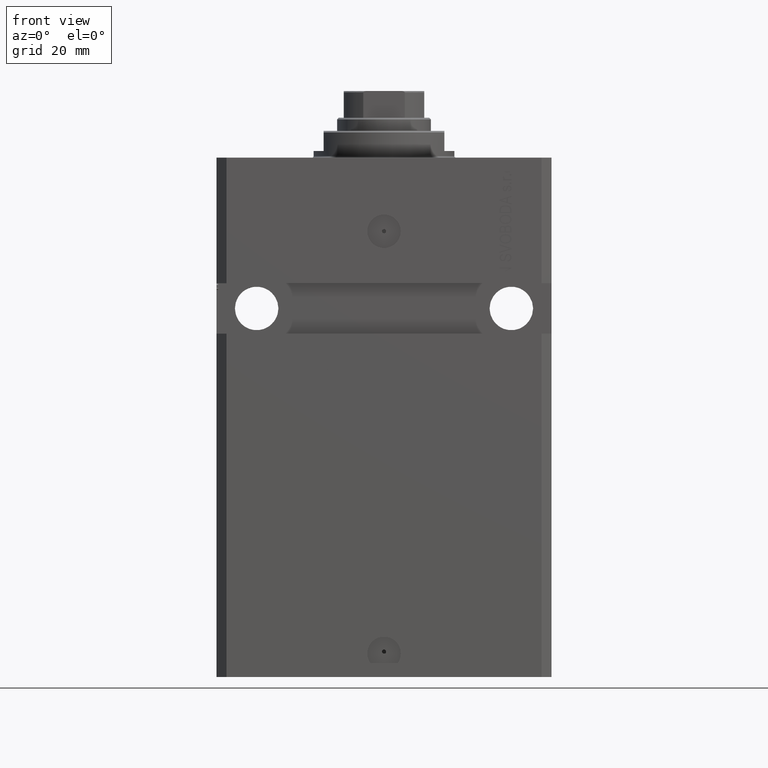
[diagram: clean part render]
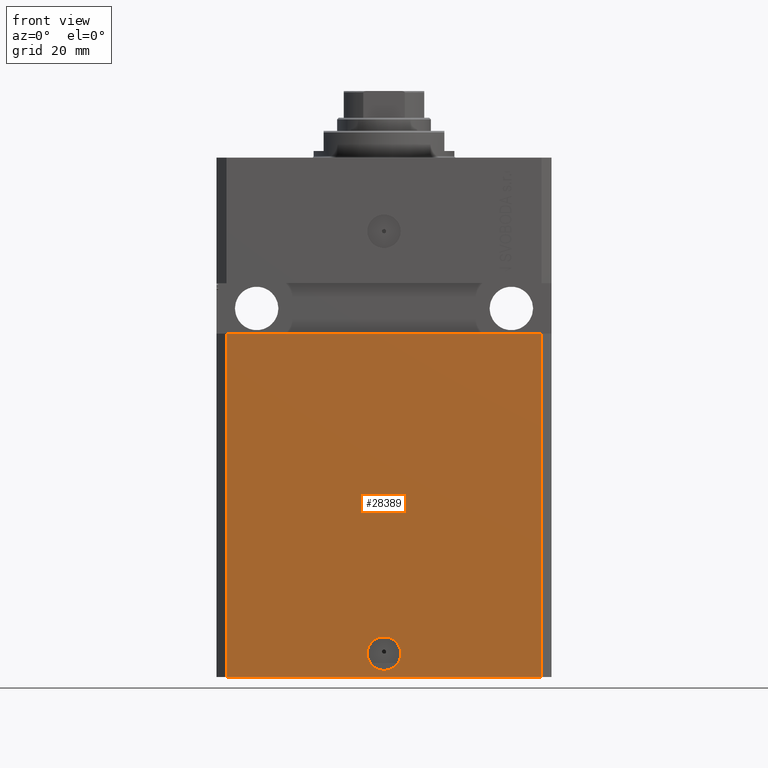
[diagram: same view with one face highlighted and labeled with its STEP entity id]
A machine part, front view. The second image highlights one B-rep face of the part: STEP entity #28389.
In plain terms, the highlighted planar face has unit normal (-0, -1, 0).
Its self-contained STEP definition (entity closure, byte-faithful):
#846 = VERTEX_POINT ( 'NONE', #2410 ) ;
#1142 = ORIENTED_EDGE ( 'NONE', *, *, #39745, .T. ) ;
#2410 = CARTESIAN_POINT ( 'NONE',  ( -46.99999999999998579, -37.50000000000000711, -52.50000000000000000 ) ) ;
#2871 = EDGE_CURVE ( 'NONE', #45865, #14007, #14637, .T. ) ;
#4160 = DIRECTION ( 'NONE',  ( 1.000000000000000000, 0.000000000000000000, 0.000000000000000000 ) ) ;
#4547 = FACE_BOUND ( 'NONE', #8611, .T. ) ;
#8611 = EDGE_LOOP ( 'NONE', ( #40154, #13265 ) ) ;
#10115 = VERTEX_POINT ( 'NONE', #16277 ) ;
#10332 = LINE ( 'NONE', #35856, #13016 ) ;
#10384 = ORIENTED_EDGE ( 'NONE', *, *, #23740, .F. ) ;
#11379 = CARTESIAN_POINT ( 'NONE',  ( -5.536351519074916863E-15, -37.50000000000000000, -148.0000000000000000 ) ) ;
#11466 = CARTESIAN_POINT ( 'NONE',  ( 47.00000000000000000, -37.49999999999999289, -52.49999999999998579 ) ) ;
#12209 = DIRECTION ( 'NONE',  ( 0.000000000000000000, 0.000000000000000000, 1.000000000000000000 ) ) ;
#13016 = VECTOR ( 'NONE', #17316, 1000.000000000000000 ) ;
#13265 = ORIENTED_EDGE ( 'NONE', *, *, #2871, .F. ) ;
#14007 = VERTEX_POINT ( 'NONE', #36288 ) ;
#14637 = CIRCLE ( 'NONE', #46161, 5.000000000000006217 ) ;
#15334 = DIRECTION ( 'NONE',  ( 0.000000000000000000, 0.000000000000000000, 1.000000000000000000 ) ) ;
#15863 = DIRECTION ( 'NONE',  ( 1.000000000000000000, -1.476360405086644309E-16, 0.000000000000000000 ) ) ;
#16123 = EDGE_CURVE ( 'NONE', #37759, #34268, #30024, .T. ) ;
#16277 = CARTESIAN_POINT ( 'NONE',  ( -47.00000000000000000, -37.49999999999999289, -155.0000000000000000 ) ) ;
#16574 = CARTESIAN_POINT ( 'NONE',  ( -47.00000000000000000, -37.49999999999999289, -155.0000000000000000 ) ) ;
#17316 = DIRECTION ( 'NONE',  ( 1.000000000000000000, -1.476360405086644309E-16, 0.000000000000000000 ) ) ;
#18604 = AXIS2_PLACEMENT_3D ( 'NONE', #28925, #46550, #28003 ) ;
#18903 = VECTOR ( 'NONE', #15334, 1000.000000000000000 ) ;
#19245 = DIRECTION ( 'NONE',  ( -1.476360405086644309E-16, -1.000000000000000000, 0.000000000000000000 ) ) ;
#19748 = CARTESIAN_POINT ( 'NONE',  ( -50.00000000000002842, -37.50000000000000711, -52.50000000000000000 ) ) ;
#22469 = CIRCLE ( 'NONE', #18604, 5.000000000000006217 ) ;
#23740 = EDGE_CURVE ( 'NONE', #846, #34268, #33960, .T. ) ;
#23860 = AXIS2_PLACEMENT_3D ( 'NONE', #16574, #19245, #15863 ) ;
#26730 = DIRECTION ( 'NONE',  ( 1.000000000000000000, 1.387778780781445182E-16, 1.387778780781445182E-16 ) ) ;
#26786 = DIRECTION ( 'NONE',  ( 1.176083712526788232E-16, -1.000000000000000000, 0.000000000000000000 ) ) ;
#28003 = DIRECTION ( 'NONE',  ( 1.000000000000000000, 0.000000000000000000, 0.000000000000000000 ) ) ;
#28389 = ADVANCED_FACE ( 'NONE', ( #4547, #41156 ), #37543, .T. ) ;
#28925 = CARTESIAN_POINT ( 'NONE',  ( -5.536351519074916863E-15, -37.50000000000000000, -148.0000000000000000 ) ) ;
#29737 = EDGE_LOOP ( 'NONE', ( #10384, #30244, #1142, #41120 ) ) ;
#30024 = LINE ( 'NONE', #34592, #18903 ) ;
#30244 = ORIENTED_EDGE ( 'NONE', *, *, #38257, .F. ) ;
#30273 = LINE ( 'NONE', #34126, #35564 ) ;
#32328 = CARTESIAN_POINT ( 'NONE',  ( -5.000000000000011546, -37.50000000000000000, -148.0000000000000000 ) ) ;
#33637 = VECTOR ( 'NONE', #26730, 1000.000000000000000 ) ;
#33960 = LINE ( 'NONE', #19748, #33637 ) ;
#34126 = CARTESIAN_POINT ( 'NONE',  ( -47.00000000000000000, -37.49999999999999289, -155.0000000000000000 ) ) ;
#34268 = VERTEX_POINT ( 'NONE', #11466 ) ;
#34592 = CARTESIAN_POINT ( 'NONE',  ( 47.00000000000000000, -37.50000000000000711, -155.0000000000000000 ) ) ;
#35564 = VECTOR ( 'NONE', #12209, 1000.000000000000000 ) ;
#35856 = CARTESIAN_POINT ( 'NONE',  ( -47.00000000000000000, -37.49999999999999289, -155.0000000000000000 ) ) ;
#36288 = CARTESIAN_POINT ( 'NONE',  ( 5.000000000000000888, -37.50000000000000000, -148.0000000000000000 ) ) ;
#37543 = PLANE ( 'NONE',  #23860 ) ;
#37548 = EDGE_CURVE ( 'NONE', #14007, #45865, #22469, .T. ) ;
#37759 = VERTEX_POINT ( 'NONE', #38330 ) ;
#38257 = EDGE_CURVE ( 'NONE', #10115, #846, #30273, .T. ) ;
#38330 = CARTESIAN_POINT ( 'NONE',  ( 47.00000000000000000, -37.50000000000000711, -155.0000000000000000 ) ) ;
#39745 = EDGE_CURVE ( 'NONE', #10115, #37759, #10332, .T. ) ;
#40154 = ORIENTED_EDGE ( 'NONE', *, *, #37548, .F. ) ;
#41120 = ORIENTED_EDGE ( 'NONE', *, *, #16123, .T. ) ;
#41156 = FACE_OUTER_BOUND ( 'NONE', #29737, .T. ) ;
#45865 = VERTEX_POINT ( 'NONE', #32328 ) ;
#46161 = AXIS2_PLACEMENT_3D ( 'NONE', #11379, #26786, #4160 ) ;
#46550 = DIRECTION ( 'NONE',  ( 1.176083712526788232E-16, -1.000000000000000000, 0.000000000000000000 ) ) ;